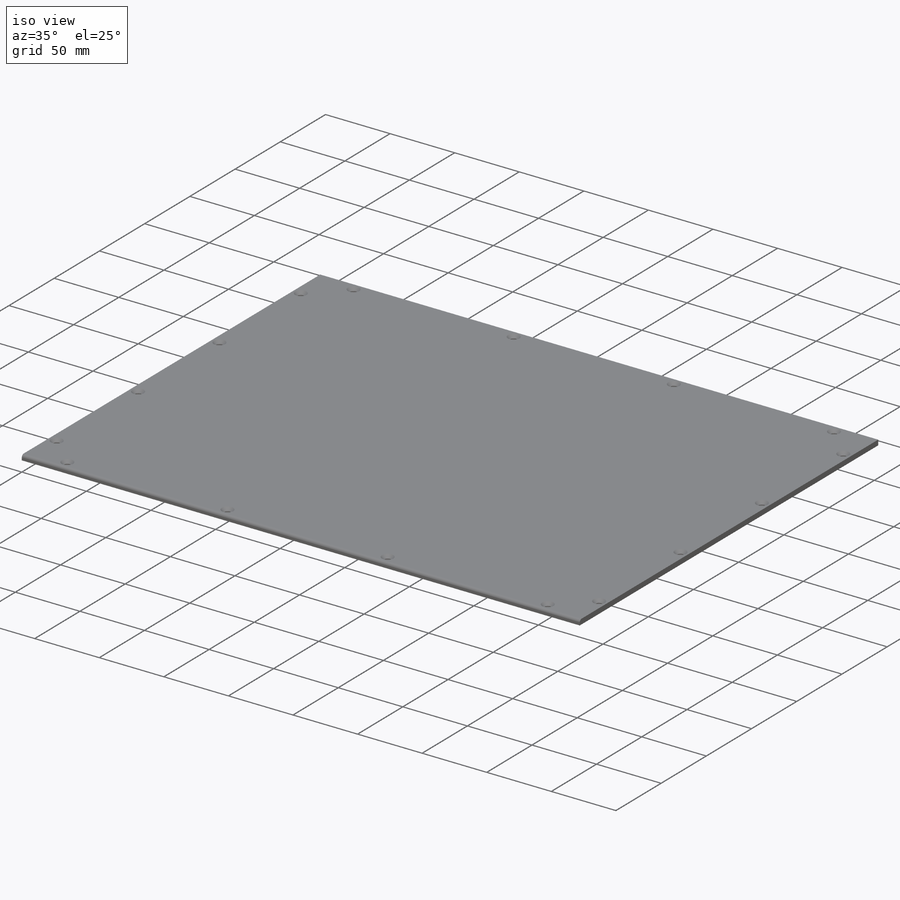
[diagram: iso view]
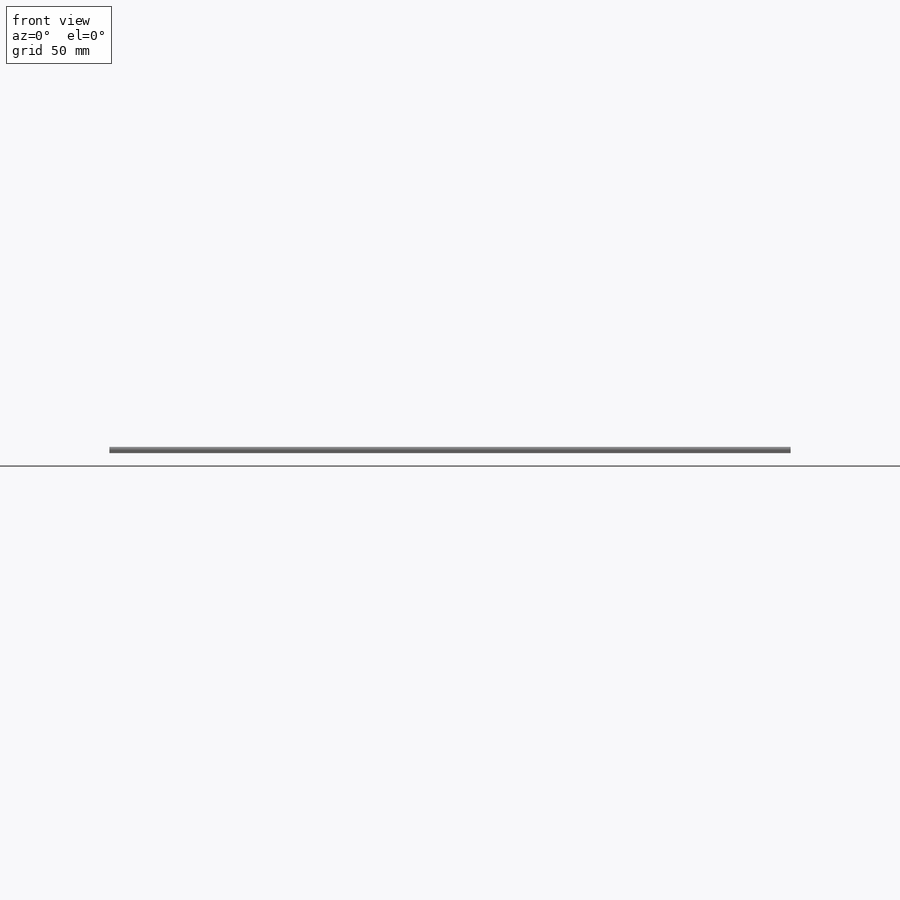
[diagram: front view]
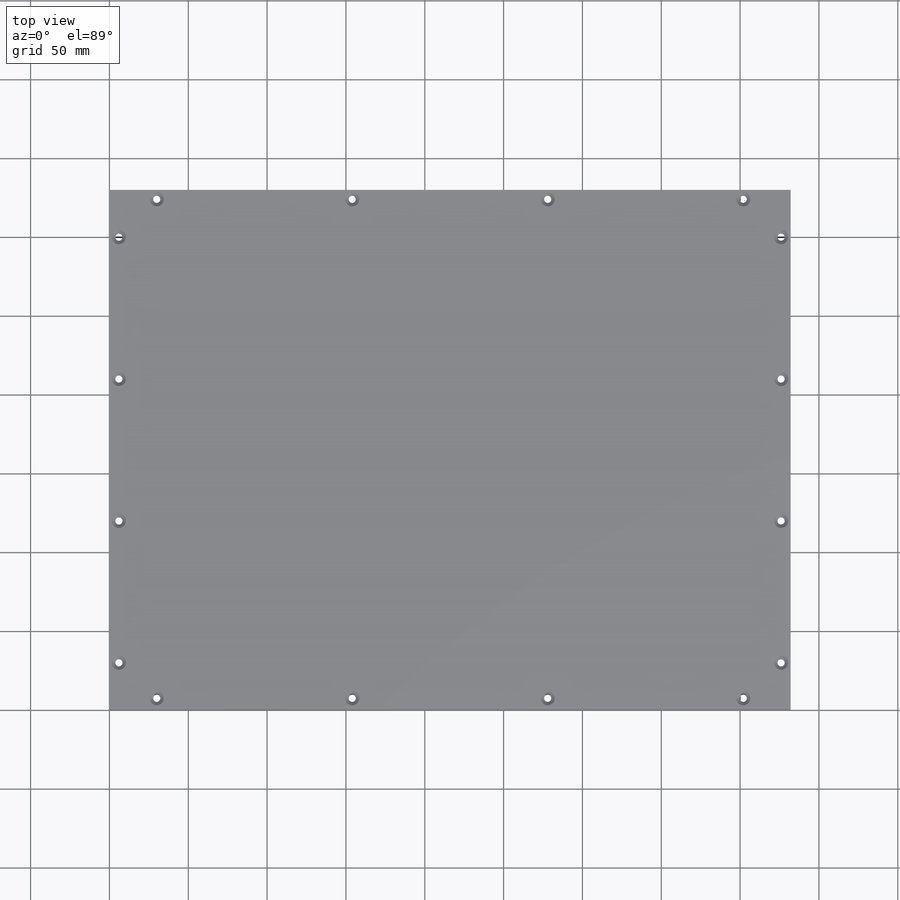
[diagram: top view]
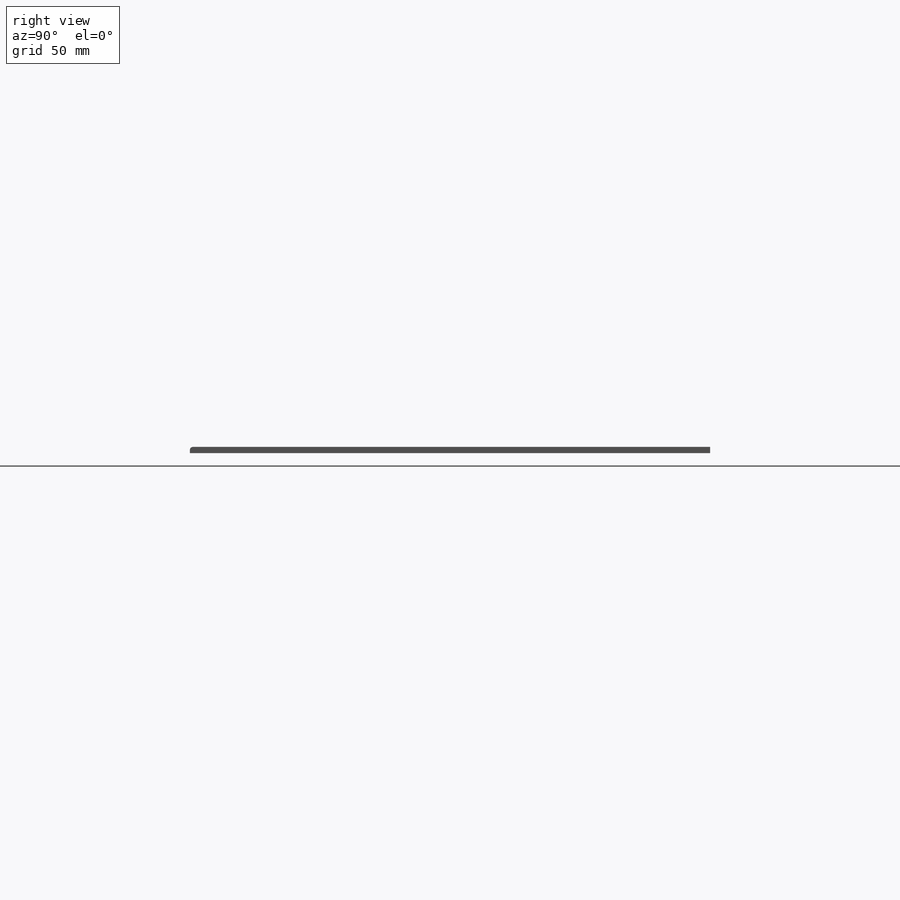
[diagram: right view]
SOLIDWORKS PART (.sldprt)
format: sldprt  version: not decoded by parser v0  size: 284,672 bytes
history: native  units: mm
features: plane x3, sketch x3, material x1, extrude x1, hole x1, fillet x1 (+8 scaffold rows collapsed)
feature tree (18):
  scaffold x8  (default folders/planes/origin — collapsed)
  material  "6061 合金"
  plane  "前基準面"
  plane  "上基準面"
  plane  "右基準面"
  sketch  "草圖1"  dims[D1=432.0mm D2=330.0mm]
  extrude  "填料-伸長1"  Depth=4mm
  hole  "M4 六角凹錐坑螺釘的錐孔1"  [1 undecoded]
  sketch  "草圖3"  dims[D1=30.0mm D2=90.0mm D3=90.0mm D4=90.0mm D5=6.0mm D6=30.0mm D7=124.0mm D8=124.0mm D9=124.0mm D10=7.5mm D11=30.0mm D12=124.0mm D13=124.0mm D14=124.0mm D15=6.0mm D16=30.0mm D17=90.0mm D18=90.0mm D19=90.0mm D20=6.0mm]
  sketch  "草圖2"  dims[hole-wizard template sketch: 54 standard entries collapsed; hole parameters kept: c17.貫穿孔直徑=4.5mm c17.貫穿孔深度=4.0mm c17.近端錐孔直徑=8.96mm c17.D4=~3.666174mm c17.近端錐孔角度=90.0deg]
  fillet  "圓角1"  Radius=2mm
decode coverage: 5 of 6 modeling features carry decoded parameters
note: ~ marks probable driven/reference dimensions
note: 1 parameter value undecoded
note: suppression state not decoded; provenance and decode notes live in map.json
